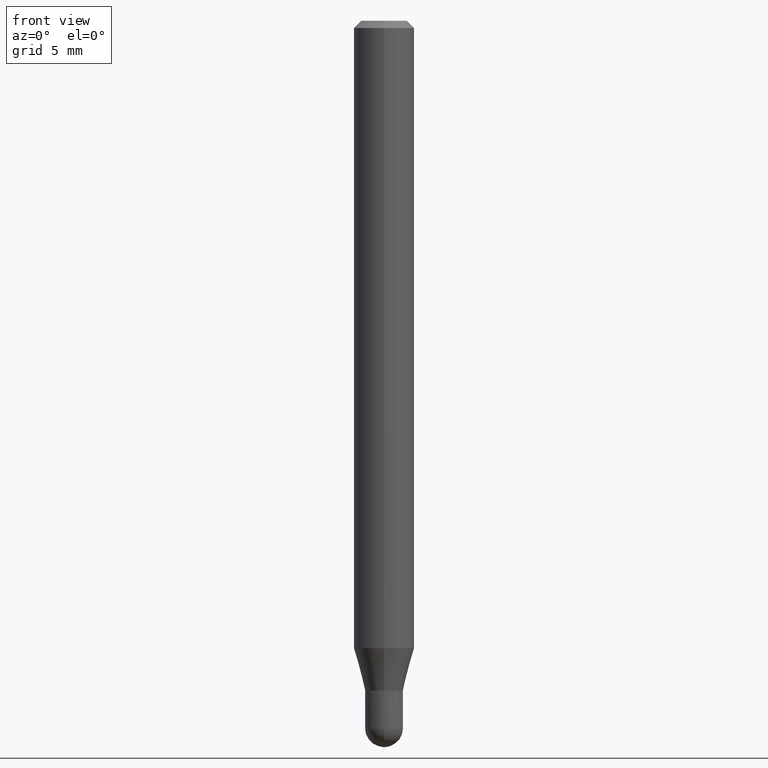
[diagram: clean part render]
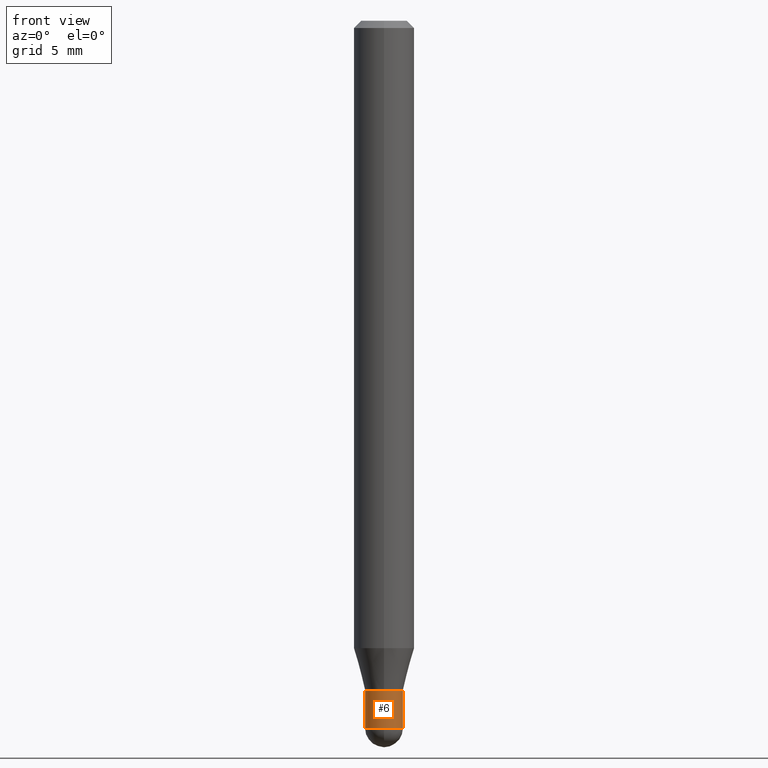
[diagram: same view with one face highlighted and labeled with its STEP entity id]
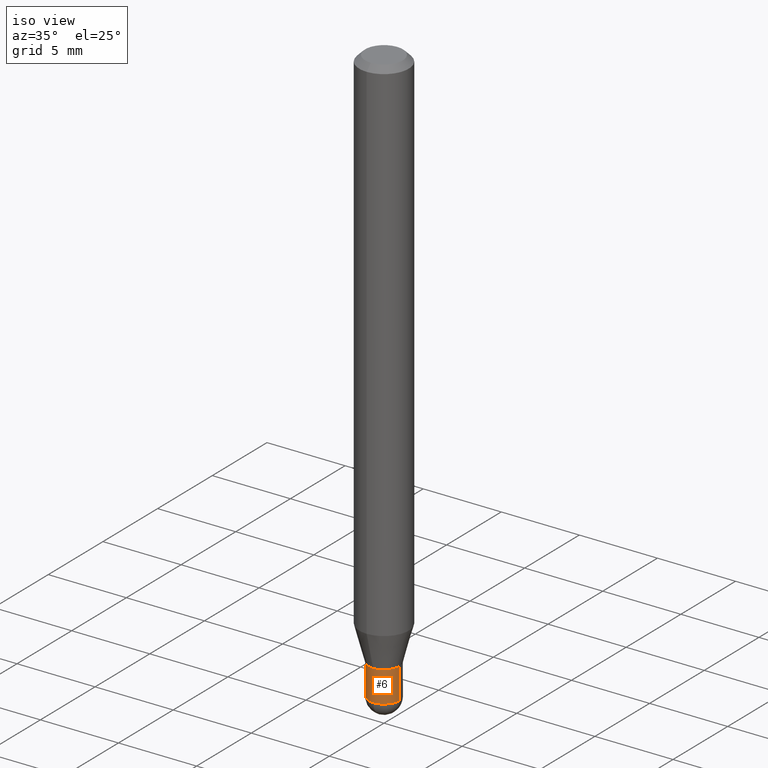
[diagram: same view with one face highlighted and labeled with its STEP entity id]
A machine part, front view. The second image highlights one B-rep face of the part: STEP entity #6.
A second angle (iso view) of the same face is appended — the face is thin or edge-on in the first view.
In plain terms, the highlighted cylindrical surface (edge-blend (fillet) strip) has radius 0.9906 mm, axis along (-0, 0, 1).
Its self-contained STEP definition (entity closure, byte-faithful):
#6 = ADVANCED_FACE ( 'NONE', ( #189 ), #215, .T. ) ;
#22 = CARTESIAN_POINT ( 'NONE',  ( 0.03899999999999999994, -5.101054236049835376E-15, -1.383000000000000229 ) ) ;
#68 = DIRECTION ( 'NONE',  ( -2.445468806185136597E-29, 3.491481338843145583E-15, 1.000000000000000000 ) ) ;
#80 = DIRECTION ( 'NONE',  ( -2.445468806185136597E-29, 3.491481338843145583E-15, 1.000000000000000000 ) ) ;
#89 = VERTEX_POINT ( 'NONE', #384 ) ;
#91 = ORIENTED_EDGE ( 'NONE', *, *, #314, .F. ) ;
#97 = DIRECTION ( 'NONE',  ( -2.445468806185136597E-29, 3.491481338843145583E-15, 1.000000000000000000 ) ) ;
#115 = EDGE_CURVE ( 'NONE', #500, #269, #148, .T. ) ;
#131 = ORIENTED_EDGE ( 'NONE', *, *, #187, .T. ) ;
#139 = CIRCLE ( 'NONE', #491, 0.03899999999999999994 ) ;
#148 = LINE ( 'NONE', #306, #208 ) ;
#152 = CARTESIAN_POINT ( 'NONE',  ( 3.382083358954044842E-29, -4.828718691620071353E-15, -1.383000000000000229 ) ) ;
#185 = DIRECTION ( 'NONE',  ( 1.000000000000000000, -6.982962677686258033E-15, 0.000000000000000000 ) ) ;
#187 = EDGE_CURVE ( 'NONE', #435, #500, #209, .T. ) ;
#189 = FACE_OUTER_BOUND ( 'NONE', #483, .T. ) ;
#191 = DIRECTION ( 'NONE',  ( -2.445468806185136597E-29, 3.491481338843145583E-15, 1.000000000000000000 ) ) ;
#208 = VECTOR ( 'NONE', #416, 39.37007874015748143 ) ;
#209 = CIRCLE ( 'NONE', #423, 0.03899999999999999994 ) ;
#215 = CYLINDRICAL_SURFACE ( 'NONE', #455, 0.03899999999999999994 ) ;
#216 = VECTOR ( 'NONE', #261, 39.37007874015748143 ) ;
#219 = CARTESIAN_POINT ( 'NONE',  ( 0.000000000000000000, 0.000000000000000000, 0.000000000000000000 ) ) ;
#221 = ORIENTED_EDGE ( 'NONE', *, *, #253, .F. ) ;
#234 = AXIS2_PLACEMENT_3D ( 'NONE', #467, #80, #244 ) ;
#244 = DIRECTION ( 'NONE',  ( 1.000000000000000000, -6.982962677686258033E-15, 0.000000000000000000 ) ) ;
#252 = VERTEX_POINT ( 'NONE', #263 ) ;
#253 = EDGE_CURVE ( 'NONE', #89, #269, #139, .T. ) ;
#261 = DIRECTION ( 'NONE',  ( -2.445468806185136877E-29, 3.491481338843145188E-15, 1.000000000000000000 ) ) ;
#263 = CARTESIAN_POINT ( 'NONE',  ( -0.03899999999999999994, -4.687774796888514046E-15, -1.461000000000000076 ) ) ;
#269 = VERTEX_POINT ( 'NONE', #22 ) ;
#278 = CARTESIAN_POINT ( 'NONE',  ( 0.03899999999999999994, -5.237222008264717388E-15, -1.461000000000000076 ) ) ;
#306 = CARTESIAN_POINT ( 'NONE',  ( 0.03899999999999999994, -2.723355444297643682E-16, 1.901708942560414931E-30 ) ) ;
#314 = EDGE_CURVE ( 'NONE', #252, #89, #392, .T. ) ;
#342 = DIRECTION ( 'NONE',  ( 1.000000000000000000, -6.982962677686265922E-15, 4.876176775795935793E-29 ) ) ;
#371 = ORIENTED_EDGE ( 'NONE', *, *, #115, .T. ) ;
#383 = DIRECTION ( 'NONE',  ( 1.000000000000000000, -6.982962677686258033E-15, 0.000000000000000000 ) ) ;
#384 = CARTESIAN_POINT ( 'NONE',  ( -0.03899999999999999994, -4.687774796888514046E-15, -1.383000000000000229 ) ) ;
#392 = LINE ( 'NONE', #494, #216 ) ;
#403 = CARTESIAN_POINT ( 'NONE',  ( -2.723355444297287708E-16, -0.03900000000000512085, -1.461000000000000076 ) ) ;
#404 = ORIENTED_EDGE ( 'NONE', *, *, #424, .T. ) ;
#416 = DIRECTION ( 'NONE',  ( -2.445468806185136877E-29, 3.491481338843145188E-15, 1.000000000000000000 ) ) ;
#423 = AXIS2_PLACEMENT_3D ( 'NONE', #508, #191, #185 ) ;
#424 = EDGE_CURVE ( 'NONE', #252, #435, #510, .T. ) ;
#435 = VERTEX_POINT ( 'NONE', #403 ) ;
#455 = AXIS2_PLACEMENT_3D ( 'NONE', #219, #97, #342 ) ;
#467 = CARTESIAN_POINT ( 'NONE',  ( 3.572829925836484317E-29, -5.101054236049835376E-15, -1.461000000000000076 ) ) ;
#483 = EDGE_LOOP ( 'NONE', ( #91, #404, #131, #371, #221 ) ) ;
#491 = AXIS2_PLACEMENT_3D ( 'NONE', #152, #68, #383 ) ;
#494 = CARTESIAN_POINT ( 'NONE',  ( -0.03899999999999999994, 2.771116669464390721E-16, -1.918384685199413078E-30 ) ) ;
#500 = VERTEX_POINT ( 'NONE', #278 ) ;
#508 = CARTESIAN_POINT ( 'NONE',  ( 3.572829925836484317E-29, -5.101054236049835376E-15, -1.461000000000000076 ) ) ;
#510 = CIRCLE ( 'NONE', #234, 0.03899999999999999994 ) ;